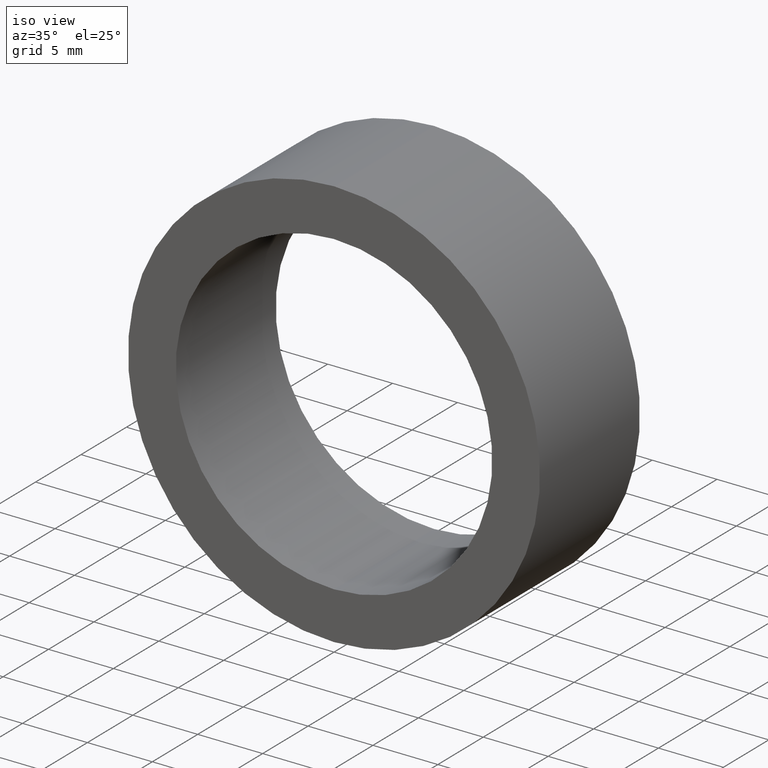
[diagram: clean part render]
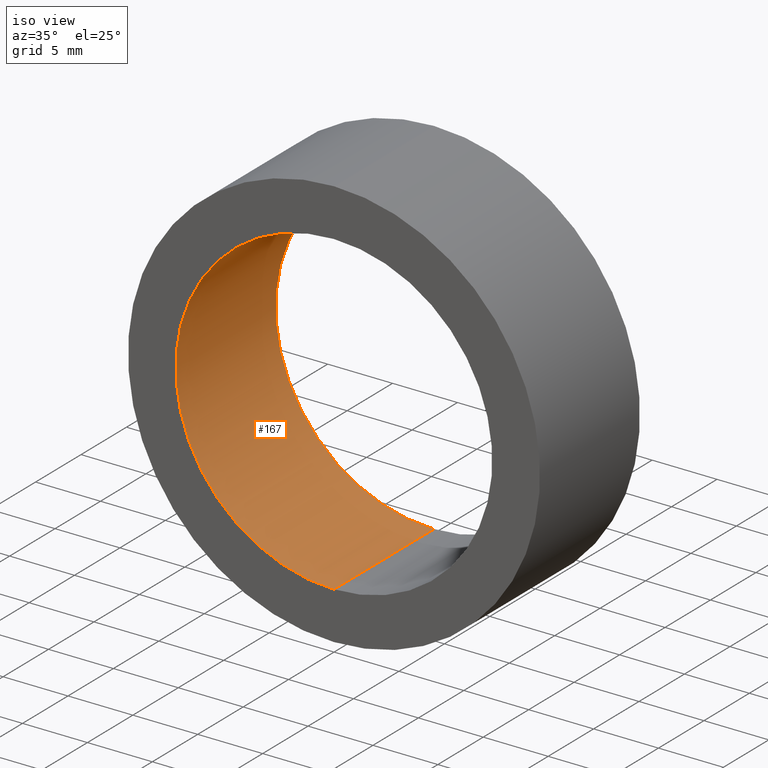
[diagram: same view with one face highlighted and labeled with its STEP entity id]
A machine part, iso view. The second image highlights one B-rep face of the part: STEP entity #167.
In plain terms, the highlighted cylindrical surface (partial cylindrical patch) has radius 12.2 mm, axis along (-0, -1, -0).
Its self-contained STEP definition (entity closure, byte-faithful):
#6 = DIRECTION ( 'NONE',  ( -0.0000000000000000000, -1.000000000000000000, -0.0000000000000000000 ) ) ;
#9 = EDGE_LOOP ( 'NONE', ( #55, #64, #69, #92 ) ) ;
#11 = AXIS2_PLACEMENT_3D ( 'NONE', #144, #223, #125 ) ;
#15 = CYLINDRICAL_SURFACE ( 'NONE', #185, 12.19999999999999900 ) ;
#24 = LINE ( 'NONE', #86, #128 ) ;
#30 = EDGE_CURVE ( 'NONE', #74, #90, #68, .T. ) ;
#40 = CARTESIAN_POINT ( 'NONE',  ( 1.494069094959770900E-015, 11.00000000000000000, 12.19999999999999900 ) ) ;
#45 = LINE ( 'NONE', #98, #140 ) ;
#55 = ORIENTED_EDGE ( 'NONE', *, *, #30, .T. ) ;
#64 = ORIENTED_EDGE ( 'NONE', *, *, #83, .T. ) ;
#68 = CIRCLE ( 'NONE', #11, 12.19999999999999900 ) ;
#69 = ORIENTED_EDGE ( 'NONE', *, *, #201, .F. ) ;
#70 = AXIS2_PLACEMENT_3D ( 'NONE', #127, #237, #194 ) ;
#73 = VERTEX_POINT ( 'NONE', #164 ) ;
#74 = VERTEX_POINT ( 'NONE', #117 ) ;
#80 = DIRECTION ( 'NONE',  ( -0.0000000000000000000, -1.000000000000000000, -0.0000000000000000000 ) ) ;
#83 = EDGE_CURVE ( 'NONE', #90, #160, #45, .T. ) ;
#86 = CARTESIAN_POINT ( 'NONE',  ( 0.0000000000000000000, 11.00000000000000000, -12.19999999999999900 ) ) ;
#90 = VERTEX_POINT ( 'NONE', #40 ) ;
#92 = ORIENTED_EDGE ( 'NONE', *, *, #131, .F. ) ;
#98 = CARTESIAN_POINT ( 'NONE',  ( 1.494069094959770900E-015, 11.00000000000000000, 12.19999999999999900 ) ) ;
#104 = CARTESIAN_POINT ( 'NONE',  ( 1.494069094959770900E-015, 0.0000000000000000000, 12.19999999999999900 ) ) ;
#107 = CIRCLE ( 'NONE', #70, 12.19999999999999900 ) ;
#117 = CARTESIAN_POINT ( 'NONE',  ( 0.0000000000000000000, 11.00000000000000000, -12.19999999999999900 ) ) ;
#125 = DIRECTION ( 'NONE',  ( 0.0000000000000000000, 0.0000000000000000000, 1.000000000000000000 ) ) ;
#127 = CARTESIAN_POINT ( 'NONE',  ( 0.0000000000000000000, 0.0000000000000000000, 0.0000000000000000000 ) ) ;
#128 = VECTOR ( 'NONE', #80, 1000.000000000000000 ) ;
#131 = EDGE_CURVE ( 'NONE', #74, #73, #24, .T. ) ;
#140 = VECTOR ( 'NONE', #146, 1000.000000000000000 ) ;
#144 = CARTESIAN_POINT ( 'NONE',  ( 0.0000000000000000000, 11.00000000000000000, 0.0000000000000000000 ) ) ;
#146 = DIRECTION ( 'NONE',  ( -0.0000000000000000000, -1.000000000000000000, -0.0000000000000000000 ) ) ;
#160 = VERTEX_POINT ( 'NONE', #104 ) ;
#164 = CARTESIAN_POINT ( 'NONE',  ( 0.0000000000000000000, 0.0000000000000000000, -12.19999999999999900 ) ) ;
#167 = ADVANCED_FACE ( 'NONE', ( #200 ), #15, .F. ) ;
#185 = AXIS2_PLACEMENT_3D ( 'NONE', #239, #6, #222 ) ;
#194 = DIRECTION ( 'NONE',  ( 0.0000000000000000000, 0.0000000000000000000, 1.000000000000000000 ) ) ;
#200 = FACE_OUTER_BOUND ( 'NONE', #9, .T. ) ;
#201 = EDGE_CURVE ( 'NONE', #73, #160, #107, .T. ) ;
#222 = DIRECTION ( 'NONE',  ( 0.0000000000000000000, 0.0000000000000000000, -1.000000000000000000 ) ) ;
#223 = DIRECTION ( 'NONE',  ( 0.0000000000000000000, 1.000000000000000000, 0.0000000000000000000 ) ) ;
#237 = DIRECTION ( 'NONE',  ( 0.0000000000000000000, 1.000000000000000000, 0.0000000000000000000 ) ) ;
#239 = CARTESIAN_POINT ( 'NONE',  ( 0.0000000000000000000, 11.00000000000000000, 0.0000000000000000000 ) ) ;